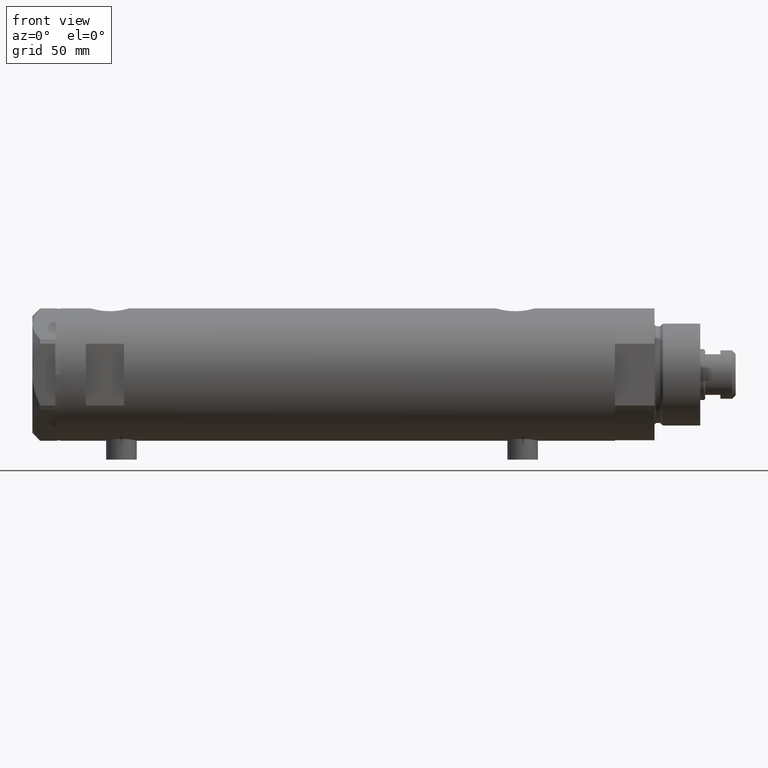
[diagram: clean part render]
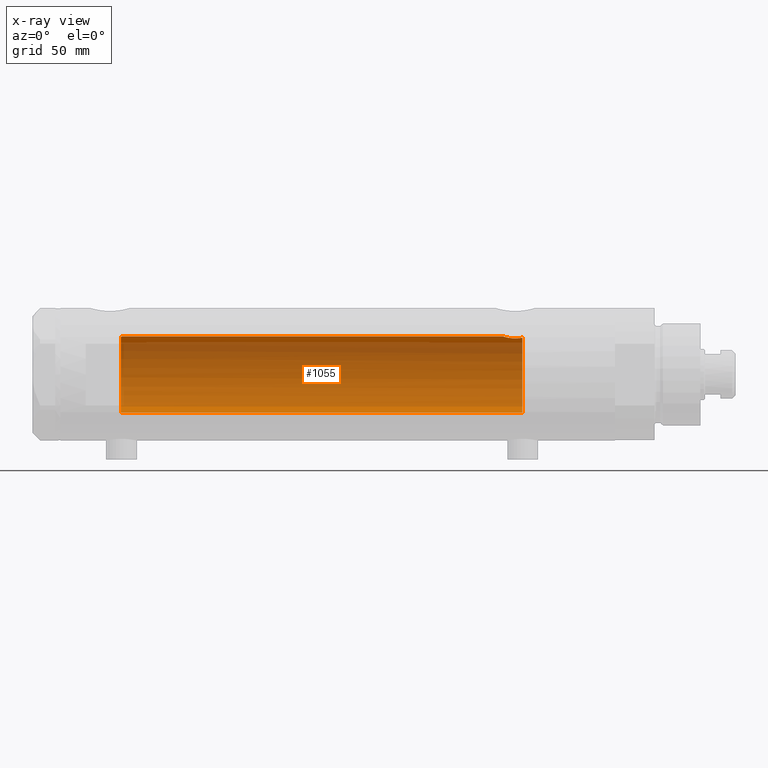
[diagram: x-ray — body ghosted, one internal face saturated and labeled with its STEP entity id]
A machine part, front view, then the same camera in x-ray: the body is ghosted and one INTERNAL B-rep face — a face not visible from any outside direction — is saturated and labeled: STEP entity #1055.
In plain terms, the highlighted cylindrical surface (partial cylindrical patch) has radius 15 mm, axis along (1, 0, -0).
Its self-contained STEP definition (entity closure, byte-faithful):
#48 = CARTESIAN_POINT ( 'NONE',  ( 0.000000000000000000, 0.000000000000000000, 108.9499999999999886 ) ) ;
#129 = CARTESIAN_POINT ( 'NONE',  ( 14.64710079709034929, 3.249565827911967020, -66.10237283776274353 ) ) ;
#214 = CARTESIAN_POINT ( 'NONE',  ( 14.39420242489971358, 4.221147702577654037, -72.17871871185444377 ) ) ;
#242 = EDGE_CURVE ( 'NONE', #1825, #3881, #1080, .T. ) ;
#411 = VERTEX_POINT ( 'NONE', #1495 ) ;
#417 = FACE_OUTER_BOUND ( 'NONE', #3562, .T. ) ;
#432 = ORIENTED_EDGE ( 'NONE', *, *, #3765, .T. ) ;
#452 = DIRECTION ( 'NONE',  ( -0.000000000000000000, -0.000000000000000000, -1.000000000000000000 ) ) ;
#482 = VERTEX_POINT ( 'NONE', #2320 ) ;
#573 = CARTESIAN_POINT ( 'NONE',  ( 14.33601656325283358, 4.414747171699213268, -67.69405684818109137 ) ) ;
#868 = VERTEX_POINT ( 'NONE', #1345 ) ;
#913 = CARTESIAN_POINT ( 'NONE',  ( 15.00000000000000000, 5.959273473684245944E-16, -64.88500000000000512 ) ) ;
#940 = CARTESIAN_POINT ( 'NONE',  ( 14.19413554982521575, 4.851369549374614287, -69.17746179061400369 ) ) ;
#957 = CARTESIAN_POINT ( 'NONE',  ( 14.92306512695867227, 1.532295990539007446, -65.12730056478241636 ) ) ;
#1055 = ADVANCED_FACE ( 'NONE', ( #417 ), #3427, .F. ) ;
#1080 = B_SPLINE_CURVE_WITH_KNOTS ( 'NONE', 3,
 ( #1888, #4574, #3032, #1197, #2729, #4242, #2351, #1154 ),
 .UNSPECIFIED., .F., .F.,
 ( 4, 2, 2, 4 ),
 ( 0.02826119741494477131, 0.02885214443185063482, 0.02944309144875649834, 0.03062498548256823577 ),
 .UNSPECIFIED. ) ;
#1154 = CARTESIAN_POINT ( 'NONE',  ( 15.00000000000000000, 0.000000000000000000, 84.58500000000000796 ) ) ;
#1167 = DIRECTION ( 'NONE',  ( -1.000000000000000000, 0.000000000000000000, 0.000000000000000000 ) ) ;
#1197 = CARTESIAN_POINT ( 'NONE',  ( 14.92022334814851980, 1.556082286439816276, 84.83634472570265928 ) ) ;
#1253 = CARTESIAN_POINT ( 'NONE',  ( 14.23822651595894762, 4.719656459720485309, -70.95110225956648264 ) ) ;
#1282 = VECTOR ( 'NONE', #4763, 1000.000000000000000 ) ;
#1307 = CARTESIAN_POINT ( 'NONE',  ( 14.23996709707016173, 4.714409263334270683, -68.52876674044655658 ) ) ;
#1345 = CARTESIAN_POINT ( 'NONE',  ( -15.00000000000000000, 0.000000000000000000, 85.15000000000000568 ) ) ;
#1468 = DIRECTION ( 'NONE',  ( -1.000000000000000000, 0.000000000000000000, 0.000000000000000000 ) ) ;
#1480 = DIRECTION ( 'NONE',  ( 1.000000000000000000, 0.000000000000000000, 0.000000000000000000 ) ) ;
#1489 = EDGE_CURVE ( 'NONE', #411, #4311, #3264, .T. ) ;
#1495 = CARTESIAN_POINT ( 'NONE',  ( -15.00000000000000000, 0.000000000000000000, -72.54999999999999716 ) ) ;
#1523 = CARTESIAN_POINT ( 'NONE',  ( 0.000000000000000000, 0.000000000000000000, 85.15000000000000568 ) ) ;
#1629 = CARTESIAN_POINT ( 'NONE',  ( 15.00000000000000178, 0.2215872191885703835, -64.88500000000000512 ) ) ;
#1679 = AXIS2_PLACEMENT_3D ( 'NONE', #1831, #3776, #1468 ) ;
#1763 = CARTESIAN_POINT ( 'NONE',  ( 15.00000000000000000, 1.836970198721029589E-15, 108.9499999999999886 ) ) ;
#1791 = EDGE_CURVE ( 'NONE', #3881, #482, #2544, .T. ) ;
#1825 = VERTEX_POINT ( 'NONE', #2970 ) ;
#1831 = CARTESIAN_POINT ( 'NONE',  ( 0.000000000000000000, 0.000000000000000000, -72.54999999999999716 ) ) ;
#1888 = CARTESIAN_POINT ( 'NONE',  ( 14.82638779339053947, 2.275571356824483082, 85.15000000000000568 ) ) ;
#1985 = CARTESIAN_POINT ( 'NONE',  ( 14.99509227038106118, 0.4430293709771145894, -64.90006686301529726 ) ) ;
#2013 = CARTESIAN_POINT ( 'NONE',  ( 14.20808274384303616, 4.809639920165278859, -70.51496246579131366 ) ) ;
#2020 = ORIENTED_EDGE ( 'NONE', *, *, #242, .F. ) ;
#2032 = CARTESIAN_POINT ( 'NONE',  ( 15.00000000000000000, 0.000000000000000000, 84.58500000000000796 ) ) ;
#2057 = CARTESIAN_POINT ( 'NONE',  ( 14.97547159671690942, 0.8856171163179419326, -64.96107436056318818 ) ) ;
#2077 = VECTOR ( 'NONE', #452, 1000.000000000000000 ) ;
#2086 = CARTESIAN_POINT ( 'NONE',  ( 14.84719462287499780, 2.145357993387301931, -65.37798666051604357 ) ) ;
#2312 = CARTESIAN_POINT ( 'NONE',  ( -15.00000000000000000, 0.000000000000000000, 108.9499999999999886 ) ) ;
#2320 = CARTESIAN_POINT ( 'NONE',  ( 15.00000000000000000, 5.959273473684245944E-16, -64.88500000000000512 ) ) ;
#2321 = CIRCLE ( 'NONE', #3984, 15.00000000000000000 ) ;
#2351 = CARTESIAN_POINT ( 'NONE',  ( 15.00000000000000533, 0.3998316629799377186, 84.58500000000003638 ) ) ;
#2402 = CARTESIAN_POINT ( 'NONE',  ( 14.96070684509190940, 1.105917936056764583, -65.00719211967314948 ) ) ;
#2449 = CARTESIAN_POINT ( 'NONE',  ( 14.25987224063200465, 4.654266980155758127, -68.31645838593742326 ) ) ;
#2544 = LINE ( 'NONE', #1763, #1282 ) ;
#2571 = ORIENTED_EDGE ( 'NONE', *, *, #1489, .T. ) ;
#2668 = B_SPLINE_CURVE_WITH_KNOTS ( 'NONE', 3,
 ( #913, #1629, #1985, #2057, #2402, #957, #3901, #2086, #3133, #3158, #129, #3185, #4624, #573, #4671, #2449, #1307, #940, #2813, #3948, #2013, #1253, #3612, #2751, #4308, #214, #3585, #3534 ),
 .UNSPECIFIED., .F., .F.,
 ( 4, 2, 2, 2, 2, 2, 2, 2, 2, 2, 2, 2, 2, 4 ),
 ( 0.01531448496322442530, 0.01597936247866479920, 0.01664423999410517135, 0.01730911750954554698, 0.01797399502498591914, 0.01930375005586666692, 0.02063350508674741471, 0.02129838260218779034, 0.02196326011762816249, 0.02329301514850894844, 0.02395789266394934142, 0.02462277017938973439, 0.02528764769483013083, 0.02595252521027052381 ),
 .UNSPECIFIED. ) ;
#2729 = CARTESIAN_POINT ( 'NONE',  ( 14.93895715383719569, 1.365440931094927590, 84.77638192761230584 ) ) ;
#2751 = CARTESIAN_POINT ( 'NONE',  ( 14.30582738521794894, 4.511024637967016915, -71.58517547595721453 ) ) ;
#2813 = CARTESIAN_POINT ( 'NONE',  ( 14.18274079043653479, 4.883732009304972088, -69.63167541567706564 ) ) ;
#2881 = CARTESIAN_POINT ( 'NONE',  ( 14.46277203719950855, 3.978470183374510416, -72.54999999999999716 ) ) ;
#2970 = CARTESIAN_POINT ( 'NONE',  ( 14.82638779339053947, 2.275571356824483082, 85.15000000000000568 ) ) ;
#3029 = DIRECTION ( 'NONE',  ( 0.000000000000000000, 0.000000000000000000, 1.000000000000000000 ) ) ;
#3032 = CARTESIAN_POINT ( 'NONE',  ( 14.87714698525761214, 1.924825815456619571, 84.97761219789977361 ) ) ;
#3054 = DIRECTION ( 'NONE',  ( -0.000000000000000000, -0.000000000000000000, -1.000000000000000000 ) ) ;
#3062 = LINE ( 'NONE', #2312, #2077 ) ;
#3133 = CARTESIAN_POINT ( 'NONE',  ( 14.81695028448457130, 2.344053258630414138, -65.48122781573721340 ) ) ;
#3158 = CARTESIAN_POINT ( 'NONE',  ( 14.72004460873233000, 2.909758128378253428, -65.82614485536704763 ) ) ;
#3185 = CARTESIAN_POINT ( 'NONE',  ( 14.49939476291675078, 3.855488469592456280, -66.74998822577916258 ) ) ;
#3240 = ORIENTED_EDGE ( 'NONE', *, *, #3863, .F. ) ;
#3264 = CIRCLE ( 'NONE', #1679, 15.00000000000000000 ) ;
#3409 = ORIENTED_EDGE ( 'NONE', *, *, #4079, .T. ) ;
#3427 = CYLINDRICAL_SURFACE ( 'NONE', #3741, 15.00000000000000000 ) ;
#3534 = CARTESIAN_POINT ( 'NONE',  ( 14.46277203719950855, 3.978470183374510416, -72.54999999999999716 ) ) ;
#3562 = EDGE_LOOP ( 'NONE', ( #4821, #2020, #3409, #432, #2571, #3240 ) ) ;
#3585 = CARTESIAN_POINT ( 'NONE',  ( 14.42780822725581125, 4.105572710089623101, -72.36940228115442153 ) ) ;
#3612 = CARTESIAN_POINT ( 'NONE',  ( 14.25831405531605078, 4.659025730769710272, -71.16798855846091953 ) ) ;
#3741 = AXIS2_PLACEMENT_3D ( 'NONE', #48, #3054, #1167 ) ;
#3765 = EDGE_CURVE ( 'NONE', #868, #411, #3062, .T. ) ;
#3776 = DIRECTION ( 'NONE',  ( 0.000000000000000000, 0.000000000000000000, -1.000000000000000000 ) ) ;
#3863 = EDGE_CURVE ( 'NONE', #482, #4311, #2668, .T. ) ;
#3881 = VERTEX_POINT ( 'NONE', #2032 ) ;
#3901 = CARTESIAN_POINT ( 'NONE',  ( 14.90012193493785375, 1.740148100968099243, -65.20148967824481190 ) ) ;
#3948 = CARTESIAN_POINT ( 'NONE',  ( 14.19789541567449831, 4.839422427565549079, -70.29531557750244986 ) ) ;
#3984 = AXIS2_PLACEMENT_3D ( 'NONE', #1523, #3029, #1480 ) ;
#4079 = EDGE_CURVE ( 'NONE', #1825, #868, #2321, .T. ) ;
#4242 = CARTESIAN_POINT ( 'NONE',  ( 14.98404286071220781, 0.7911628595372716122, 84.63357750803341162 ) ) ;
#4308 = CARTESIAN_POINT ( 'NONE',  ( 14.33334483745703025, 4.423389780079200584, -71.78724945987950434 ) ) ;
#4311 = VERTEX_POINT ( 'NONE', #2881 ) ;
#4574 = CARTESIAN_POINT ( 'NONE',  ( 14.85285765243877343, 2.103108122960808402, 85.05873200114291421 ) ) ;
#4624 = CARTESIAN_POINT ( 'NONE',  ( 14.42796195111116830, 4.108450791336243135, -67.10736184290816198 ) ) ;
#4671 = CARTESIAN_POINT ( 'NONE',  ( 14.30778609824508329, 4.504821240468947607, -67.89964104205775186 ) ) ;
#4763 = DIRECTION ( 'NONE',  ( -0.000000000000000000, -0.000000000000000000, -1.000000000000000000 ) ) ;
#4821 = ORIENTED_EDGE ( 'NONE', *, *, #1791, .F. ) ;